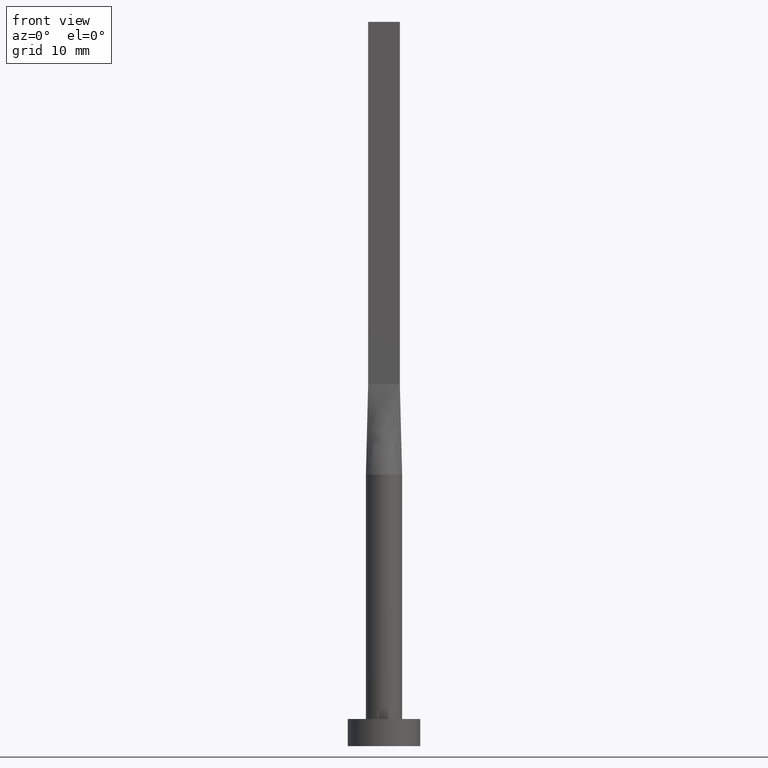
[diagram: clean part render]
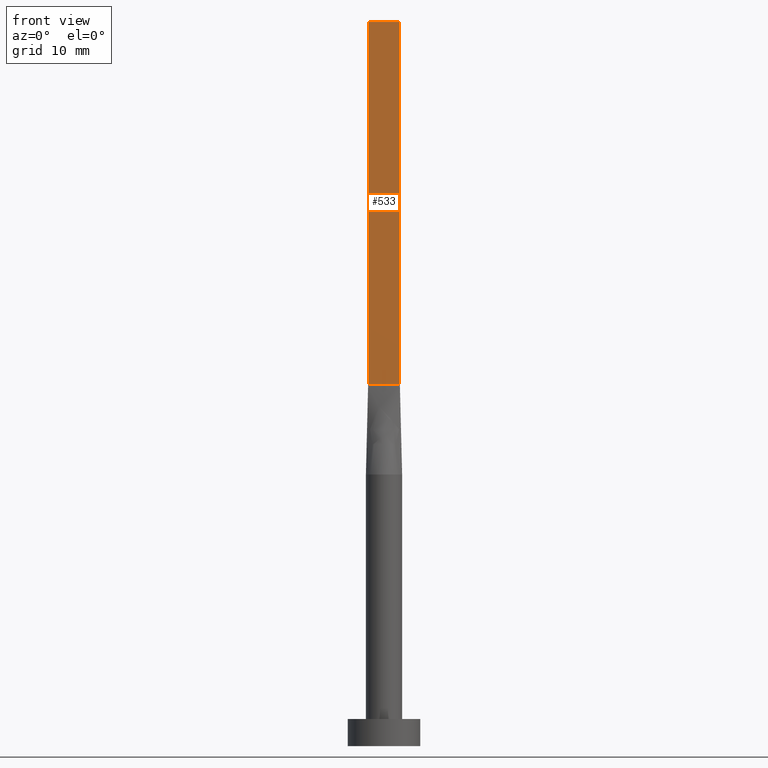
[diagram: same view with one face highlighted and labeled with its STEP entity id]
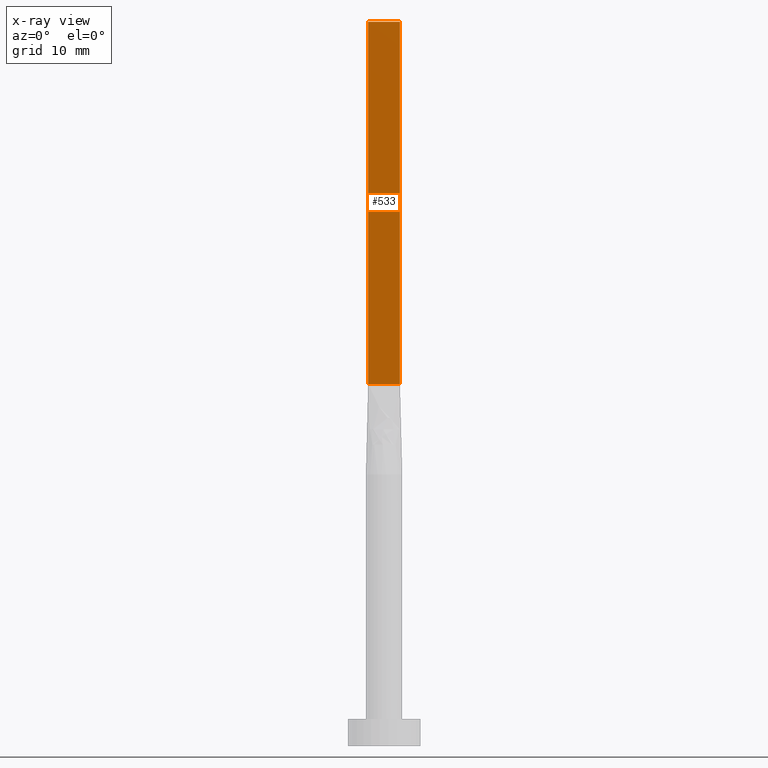
[diagram: x-ray of the same camera — body ghosted, the highlighted face saturated]
A machine part, front view. The second image highlights one B-rep face of the part: STEP entity #533.
The next image is the same camera in x-ray: the body ghosted, the highlighted face saturated — about 0% of this face is hidden behind the body in this view.
In plain terms, the highlighted planar face has unit normal (0, 1, 0).
Its self-contained STEP definition (entity closure, byte-faithful):
#9 = DIRECTION ( 'NONE',  ( -0.000000000000000000, -0.000000000000000000, -1.000000000000000000 ) ) ;
#11 = FACE_OUTER_BOUND ( 'NONE', #65, .T. ) ;
#15 = DIRECTION ( 'NONE',  ( 0.000000000000000000, -0.000000000000000000, 1.000000000000000000 ) ) ;
#17 = VERTEX_POINT ( 'NONE', #254 ) ;
#39 = VERTEX_POINT ( 'NONE', #339 ) ;
#51 = EDGE_CURVE ( 'NONE', #233, #39, #201, .T. ) ;
#56 = CARTESIAN_POINT ( 'NONE',  ( -1.750000000000000000, -0.3999999999999996891, 80.00000000000000000 ) ) ;
#65 = EDGE_LOOP ( 'NONE', ( #155, #522, #460, #411 ) ) ;
#68 = EDGE_CURVE ( 'NONE', #220, #233, #107, .T. ) ;
#107 = LINE ( 'NONE', #213, #137 ) ;
#137 = VECTOR ( 'NONE', #466, 1000.000000000000000 ) ;
#139 = VECTOR ( 'NONE', #9, 1000.000000000000000 ) ;
#148 = PLANE ( 'NONE',  #483 ) ;
#152 = DIRECTION ( 'NONE',  ( -0.000000000000000000, -0.000000000000000000, -1.000000000000000000 ) ) ;
#155 = ORIENTED_EDGE ( 'NONE', *, *, #385, .T. ) ;
#201 = LINE ( 'NONE', #554, #228 ) ;
#213 = CARTESIAN_POINT ( 'NONE',  ( -1.750000000000000000, -0.3999999999999996891, 80.00000000000000000 ) ) ;
#219 = CARTESIAN_POINT ( 'NONE',  ( 1.750000000000000000, -0.3999999999999996891, 80.00000000000000000 ) ) ;
#220 = VERTEX_POINT ( 'NONE', #531 ) ;
#228 = VECTOR ( 'NONE', #152, 1000.000000000000000 ) ;
#229 = LINE ( 'NONE', #56, #139 ) ;
#233 = VERTEX_POINT ( 'NONE', #219 ) ;
#254 = CARTESIAN_POINT ( 'NONE',  ( -1.750000000000000000, -0.3999999999999996891, 40.00000000000000000 ) ) ;
#317 = DIRECTION ( 'NONE',  ( 1.000000000000000000, 0.000000000000000000, 0.000000000000000000 ) ) ;
#339 = CARTESIAN_POINT ( 'NONE',  ( 1.750000000000000000, -0.3999999999999996891, 40.00000000000000000 ) ) ;
#354 = CARTESIAN_POINT ( 'NONE',  ( -1.750000000000000000, -0.3999999999999996891, 40.00000000000000000 ) ) ;
#367 = EDGE_CURVE ( 'NONE', #220, #17, #229, .T. ) ;
#385 = EDGE_CURVE ( 'NONE', #17, #39, #497, .T. ) ;
#411 = ORIENTED_EDGE ( 'NONE', *, *, #367, .T. ) ;
#416 = DIRECTION ( 'NONE',  ( 0.000000000000000000, 1.000000000000000000, 0.000000000000000000 ) ) ;
#459 = CARTESIAN_POINT ( 'NONE',  ( -1.750000000000000000, -0.3999999999999996891, 80.00000000000000000 ) ) ;
#460 = ORIENTED_EDGE ( 'NONE', *, *, #68, .F. ) ;
#466 = DIRECTION ( 'NONE',  ( 1.000000000000000000, 0.000000000000000000, 0.000000000000000000 ) ) ;
#477 = VECTOR ( 'NONE', #317, 1000.000000000000000 ) ;
#483 = AXIS2_PLACEMENT_3D ( 'NONE', #459, #416, #15 ) ;
#497 = LINE ( 'NONE', #354, #477 ) ;
#522 = ORIENTED_EDGE ( 'NONE', *, *, #51, .F. ) ;
#531 = CARTESIAN_POINT ( 'NONE',  ( -1.750000000000000000, -0.3999999999999996891, 80.00000000000000000 ) ) ;
#533 = ADVANCED_FACE ( 'NONE', ( #11 ), #148, .F. ) ;
#554 = CARTESIAN_POINT ( 'NONE',  ( 1.750000000000000000, -0.3999999999999996891, 80.00000000000000000 ) ) ;